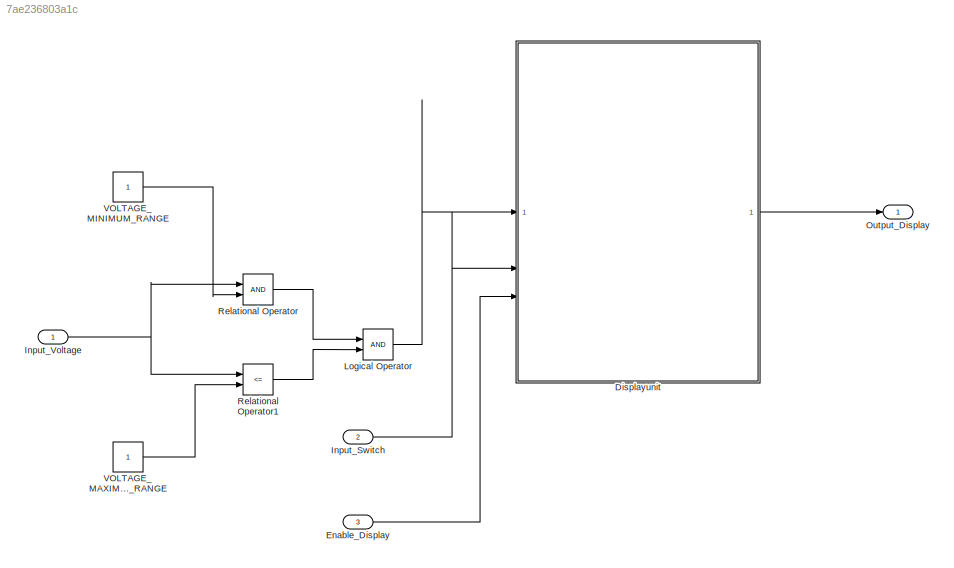
MODEL slx_7ae236803a1c
KIND model
CONFIG AbsTol = auto
CONFIG EnableMultiTasking = off
CONFIG FixedStep = 0.01
CONFIG MaxStep = auto
CONFIG MinStep = auto
CONFIG RelTol = 1e-3
CONFIG SampleTimeConstraint = Unconstrained
CONFIG SolverName = FixedStepDiscrete
CONFIG StartTime = 0.0
CONFIG StopTime = 1.0
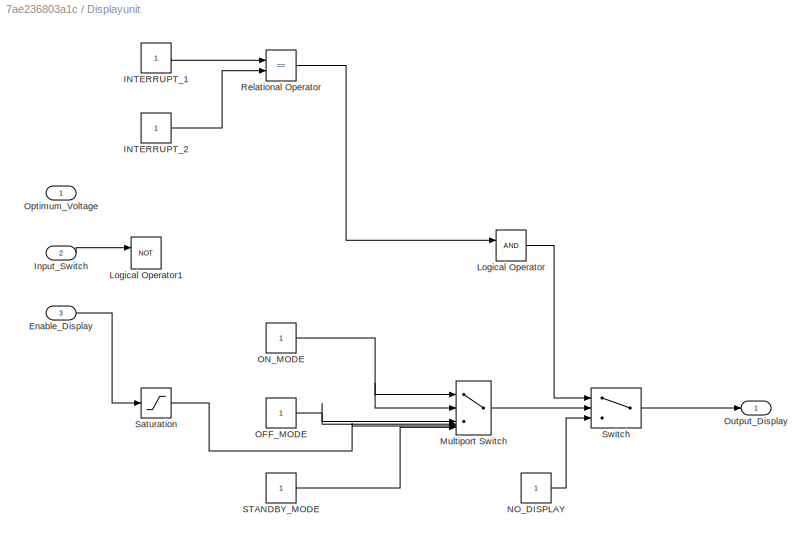
BLOCK [SubSystem] Displayunit
BLOCK [Inport] Displayunit/Enable_Display
  Port = 3
BLOCK [Constant] Displayunit/INTERRUPT_1
BLOCK [Constant] Displayunit/INTERRUPT_2
BLOCK [Inport] Displayunit/Input_Switch
  Port = 2
BLOCK [Logic] Displayunit/Logical Operator
  AllPortsSameDT = off
  OutDataTypeStr = boolean
BLOCK [Logic] Displayunit/Logical Operator1
  AllPortsSameDT = off
  Operator = NOT
  OutDataTypeStr = boolean
BLOCK [MultiPortSwitch] Displayunit/Multiport Switch
  InputSameDT = off
  Inputs = 5
  SaturateOnIntegerOverflow = off
BLOCK [Constant] Displayunit/NO_DISPLAY
BLOCK [Constant] Displayunit/OFF_MODE
BLOCK [Constant] Displayunit/ON_MODE
BLOCK [Inport] Displayunit/Optimum_Voltage
BLOCK [Outport] Displayunit/Output_Display
BLOCK [RelationalOperator] Displayunit/Relational Operator
  InputSameDT = off
  Operator = ==
  OutDataTypeStr = boolean
  RndMeth = Simplest
BLOCK [Constant] Displayunit/STANDBY_MODE
BLOCK [Saturate] Displayunit/Saturation
  LowerLimit = 0
  UpperLimit = 7
BLOCK [Switch] Displayunit/Switch
  Criteria = u2 > Threshold
  InputSameDT = off
  SaturateOnIntegerOverflow = off
BLOCK [Inport] Enable_Display
  Port = 3
BLOCK [Inport] Input_Switch
  Port = 2
BLOCK [Inport] Input_Voltage
BLOCK [Logic] Logical Operator
  AllPortsSameDT = off
  OutDataTypeStr = boolean
BLOCK [Outport] Output_Display
BLOCK [RelationalOperator] Relational Operator
  InputSameDT = off
  OutDataTypeStr = boolean
  RndMeth = Simplest
BLOCK [RelationalOperator] Relational Operator1
  InputSameDT = off
  Operator = <=
  OutDataTypeStr = boolean
  RndMeth = Simplest
BLOCK [Constant] VOLTAGE_MAXIMUM_RANGE
BLOCK [Constant] VOLTAGE_MINIMUM_RANGE
LINE Displayunit/Enable_Display:1 -> Displayunit/Saturation:1
LINE Displayunit/INTERRUPT_1:1 -> Displayunit/Relational Operator:1
LINE Displayunit/INTERRUPT_2:1 -> Displayunit/Relational Operator:2
LINE Displayunit/Input_Switch:1 -> Displayunit/Logical Operator1:1
LINE Displayunit/Logical Operator:1 -> Displayunit/Switch:1
LINE Displayunit/Multiport Switch:1 -> Displayunit/Switch:2
LINE Displayunit/NO_DISPLAY:1 -> Displayunit/Switch:3
NET Displayunit/OFF_MODE:1 -> Displayunit/Multiport Switch:3, Displayunit/Multiport Switch:4
NET Displayunit/ON_MODE:1 -> Displayunit/Multiport Switch:1, Displayunit/Multiport Switch:2
LINE Displayunit/Relational Operator:1 -> Displayunit/Logical Operator:1
LINE Displayunit/STANDBY_MODE:1 -> Displayunit/Multiport Switch:6
LINE Displayunit/Saturation:1 -> Displayunit/Multiport Switch:5
LINE Displayunit/Switch:1 -> Displayunit/Output_Display:1
LINE Displayunit:1 -> Output_Display:1
LINE Enable_Display:1 -> Displayunit:3
LINE Input_Switch:1 -> Displayunit:2
NET Input_Voltage:1 -> Relational Operator1:1, Relational Operator:1
LINE Logical Operator:1 -> Displayunit:1
LINE Relational Operator1:1 -> Logical Operator:2
LINE Relational Operator:1 -> Logical Operator:1
LINE VOLTAGE_MAXIMUM_RANGE:1 -> Relational Operator1:2
LINE VOLTAGE_MINIMUM_RANGE:1 -> Relational Operator:2
note: NET lines group one-source signal fan-out (src -> all destinations, sorted); 1:1 wires keep LINE
